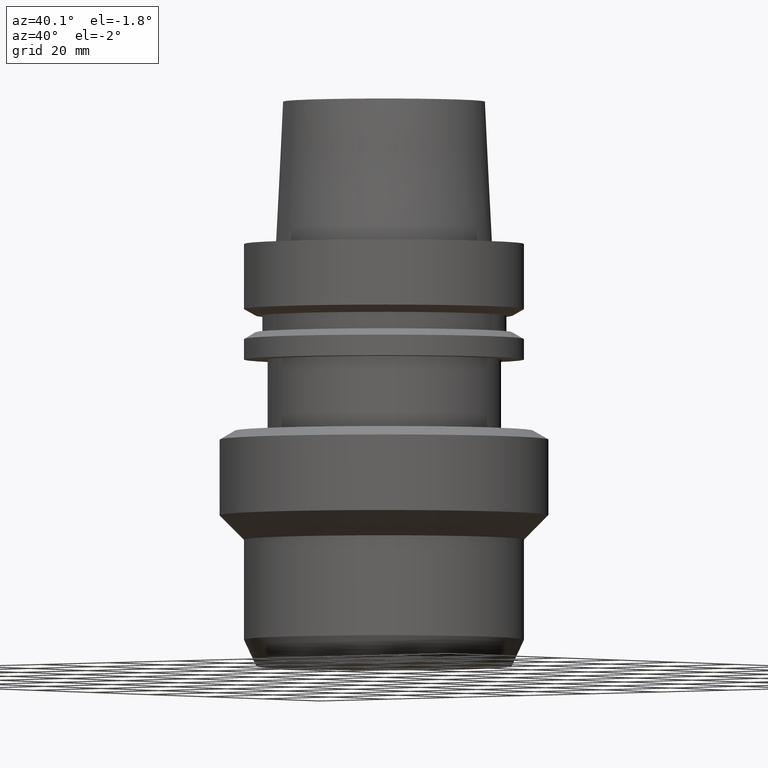
[diagram: clean part render]
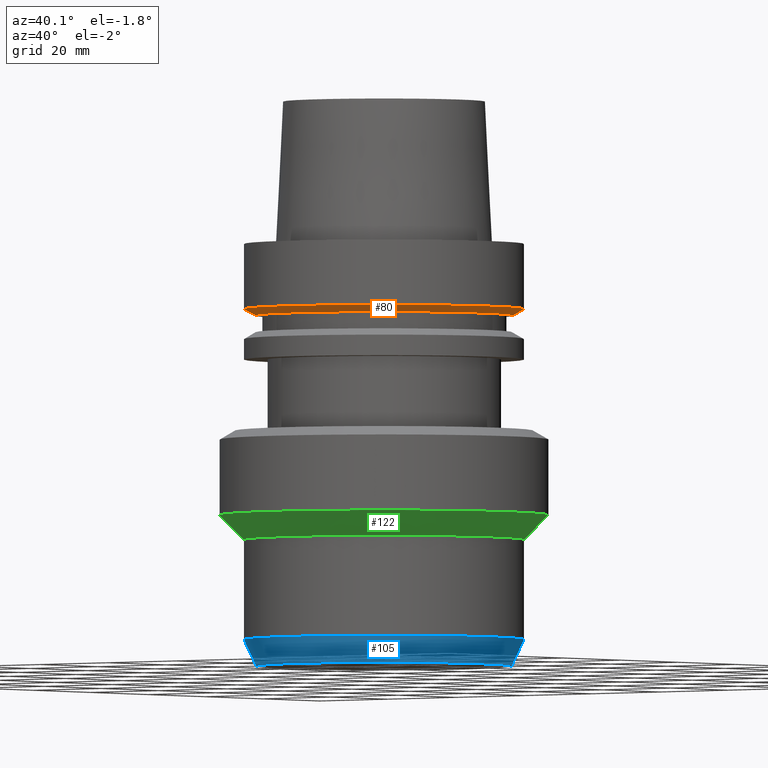
[diagram: same view with three faces highlighted in distinct colors, each labeled with its STEP entity id]
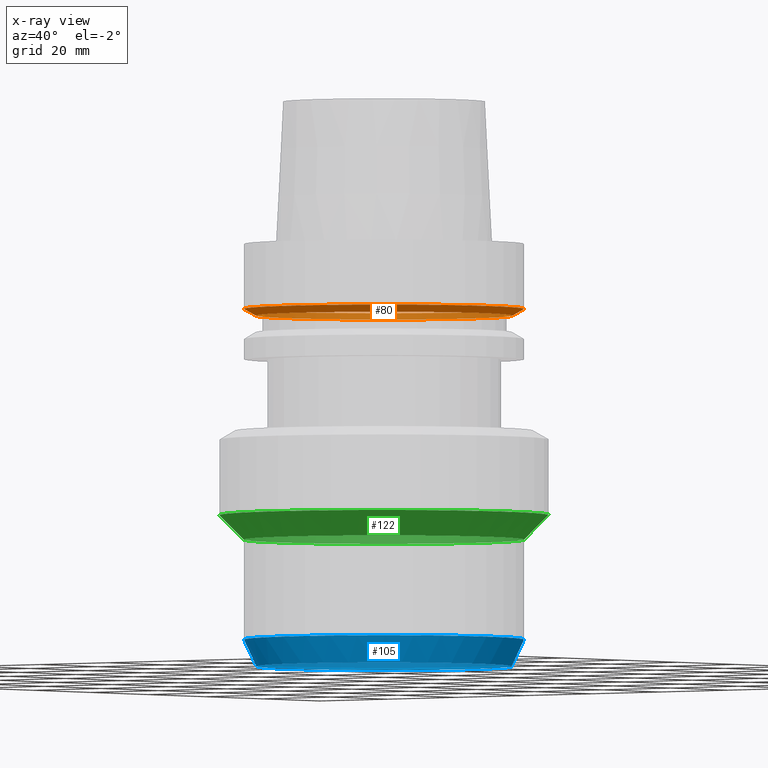
[diagram: x-ray of the same camera — body ghosted, the three highlighted faces saturated]
A machine part, auxiliary view with three faces highlighted in distinct colors.
The next image is the same camera in x-ray (body ghosted, the three faces saturated) — at least one of them is partly hidden behind the body in this view.
Their STEP definitions:

[orange] entity #80 — the highlighted conical surface has half-angle 60 deg.
#80=ADVANCED_FACE('Unnamed[1]',(#201,#202),#203,.T.);
#87=EDGE_CURVE('Unnamed[1]',#212,#212,#213,.T.);
#156=EDGE_CURVE('Unnamed[1]',#321,#321,#322,.T.);
#201=FACE_BOUND('',#363,.T.);
#202=FACE_BOUND('',#364,.T.);
#203=CONICAL_SURFACE('',#365,30.1987976320959,1.04719755119657);
#212=VERTEX_POINT('',#377);
#213=CIRCLE('',#378,31.5);
#321=VERTEX_POINT('',#514);
#322=CIRCLE('',#515,28.8975952641919);
#363=EDGE_LOOP('',(#546));
#364=EDGE_LOOP('',(#547));
#365=AXIS2_PLACEMENT_3D('',#548,#549,#550);
#377=CARTESIAN_POINT('',(8.95369947681261E-016,31.5,-14.6225009252407));
#378=AXIS2_PLACEMENT_3D('',#559,#560,#561);
#514=CARTESIAN_POINT('',(9.87371481812551E-016,28.8975952641919,-16.125));
#515=AXIS2_PLACEMENT_3D('',#681,#682,#683);
#546=ORIENTED_EDGE('',*,*,#156,.F.);
#547=ORIENTED_EDGE('',*,*,#87,.T.);
#548=CARTESIAN_POINT('',(9.41370714746907E-016,5.53839958104022E-015,-15.3737504626203));
#549=DIRECTION('',(-6.12323399573677E-017,-7.79108829899063E-017,1.0));
#550=DIRECTION('',(-9.59781840438566E-033,1.0,7.79108829899063E-017));
#559=CARTESIAN_POINT('',(8.95369947681262E-016,5.47986906623721E-015,-14.6225009252407));
#560=DIRECTION('',(6.12323399573677E-017,7.79108829899063E-017,-1.0));
#561=DIRECTION('',(-9.59781840438566E-033,1.0,7.79108829899063E-017));
#681=CARTESIAN_POINT('',(9.87371481812552E-016,5.59693009584322E-015,-16.125));
#682=DIRECTION('',(6.12323399573677E-017,7.79108829899063E-017,-1.0));
#683=DIRECTION('',(-9.59781840438566E-033,1.0,7.79108829899063E-017));

[blue] entity #105 — the highlighted conical surface has half-angle 25 deg.
#94=EDGE_CURVE('Unnamed[1]',#223,#223,#224,.T.);
#102=EDGE_CURVE('Unnamed[1]',#236,#236,#237,.T.);
#105=ADVANCED_FACE('Unnamed[1]',(#240,#241),#242,.T.);
#223=VERTEX_POINT('',#391);
#224=CIRCLE('',#392,28.7021540510708);
#236=VERTEX_POINT('',#407);
#237=CIRCLE('',#408,31.5000000000002);
#240=FACE_BOUND('',#412,.T.);
#241=FACE_BOUND('',#413,.T.);
#242=CONICAL_SURFACE('',#414,30.1010770255355,0.436332312998494);
#391=CARTESIAN_POINT('',(5.81707229594996E-015,28.7021540510708,-95.0000000000005));
#392=AXIS2_PLACEMENT_3D('',#571,#572,#573);
#407=CARTESIAN_POINT('',(5.44967825620575E-015,31.5000000000002,-89.0000000000005));
#408=AXIS2_PLACEMENT_3D('',#586,#587,#588);
#412=EDGE_LOOP('',(#590));
#413=EDGE_LOOP('',(#591));
#414=AXIS2_PLACEMENT_3D('',#592,#593,#594);
#571=CARTESIAN_POINT('',(5.81707229594996E-015,1.17421509916721E-014,-95.0000000000005));
#572=DIRECTION('',(6.12323399573677E-017,7.79108829899064E-017,-1.0));
#573=DIRECTION('',(-9.59781840438566E-033,1.0,7.79108829899063E-017));
#586=CARTESIAN_POINT('',(5.44967825620575E-015,1.12746856937327E-014,-89.0000000000005));
#587=DIRECTION('',(6.12323399573677E-017,7.79108829899063E-017,-1.0));
#588=DIRECTION('',(-9.59781840438566E-033,1.0,7.79108829899063E-017));
#590=ORIENTED_EDGE('',*,*,#94,.F.);
#591=ORIENTED_EDGE('',*,*,#102,.T.);
#592=CARTESIAN_POINT('',(5.63337527607785E-015,1.15084183427024E-014,-92.0000000000005));
#593=DIRECTION('',(-6.12323399573677E-017,-7.79108829899063E-017,1.0));
#594=DIRECTION('',(-9.59781840438566E-033,1.0,7.79108829899063E-017));

[green] entity #122 — the highlighted conical surface has half-angle 45 deg.
#110=EDGE_CURVE('Unnamed[1]',#249,#249,#250,.T.);
#122=ADVANCED_FACE('Unnamed[1]',(#267,#268),#269,.T.);
#129=EDGE_CURVE('Unnamed[1]',#279,#279,#280,.T.);
#249=VERTEX_POINT('',#423);
#250=CIRCLE('',#424,37.0000000000001);
#267=FACE_BOUND('',#446,.T.);
#268=FACE_BOUND('',#447,.T.);
#269=CONICAL_SURFACE('',#448,34.2500000000001,0.785398163397427);
#279=VERTEX_POINT('',#461);
#280=CIRCLE('',#462,31.5000000000002);
#423=CARTESIAN_POINT('',(3.73517273739954E-015,37.0000000000001,-61.0000000000018));
#424=AXIS2_PLACEMENT_3D('',#601,#602,#603);
#446=EDGE_LOOP('',(#620));
#447=EDGE_LOOP('',(#621));
#448=AXIS2_PLACEMENT_3D('',#622,#623,#624);
#461=CARTESIAN_POINT('',(4.07195060716506E-015,31.5000000000002,-66.5000000000019));
#462=AXIS2_PLACEMENT_3D('',#634,#635,#636);
#601=CARTESIAN_POINT('',(3.73517273739954E-015,9.09318097001541E-015,-61.0000000000018));
#602=DIRECTION('',(6.12323399573677E-017,7.79108829899063E-017,-1.0));
#603=DIRECTION('',(-9.59781840438566E-033,1.0,7.79108829899063E-017));
#620=ORIENTED_EDGE('',*,*,#129,.F.);
#621=ORIENTED_EDGE('',*,*,#110,.T.);
#622=CARTESIAN_POINT('',(3.9035616722823E-015,9.30743589823766E-015,-63.7500000000018));
#623=DIRECTION('',(-6.12323399573677E-017,-7.79108829899063E-017,1.0));
#624=DIRECTION('',(-9.59781840438566E-033,1.0,7.79108829899063E-017));
#634=CARTESIAN_POINT('',(4.07195060716506E-015,9.5216908264599E-015,-66.5000000000019));
#635=DIRECTION('',(6.12323399573677E-017,7.79108829899063E-017,-1.0));
#636=DIRECTION('',(-9.59781840438566E-033,1.0,7.79108829899063E-017));